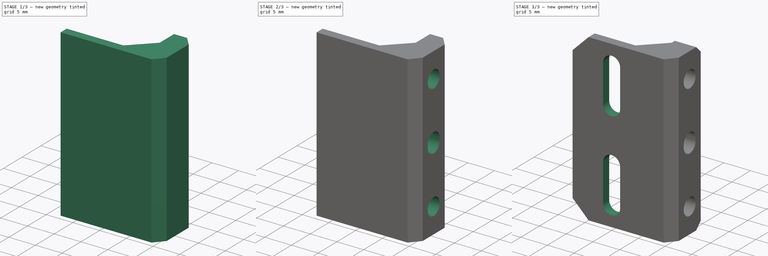
[diagram: build sequence overview — one tinted view per stage of 3, left to right]
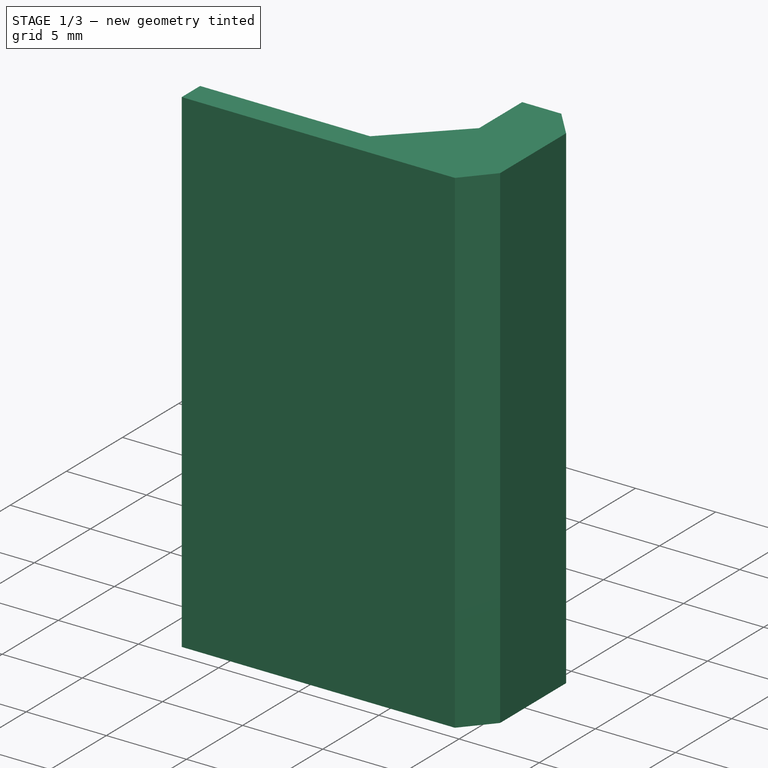
[diagram: stage 1 of 3 — iso view after this stage's code; geometry added in this stage tinted green]
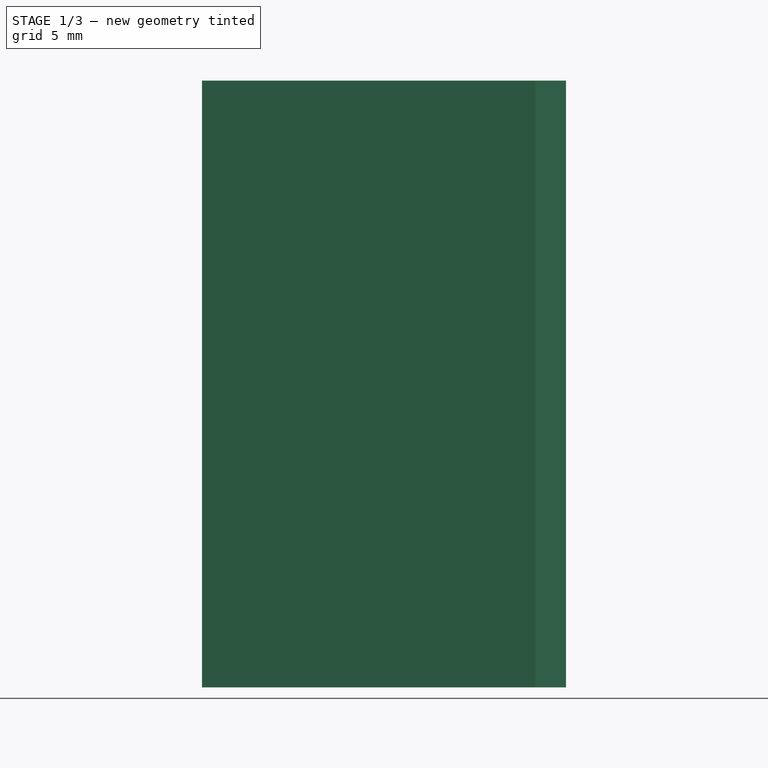
[diagram: stage 1 of 3 — front view after this stage's code; geometry added in this stage tinted green]
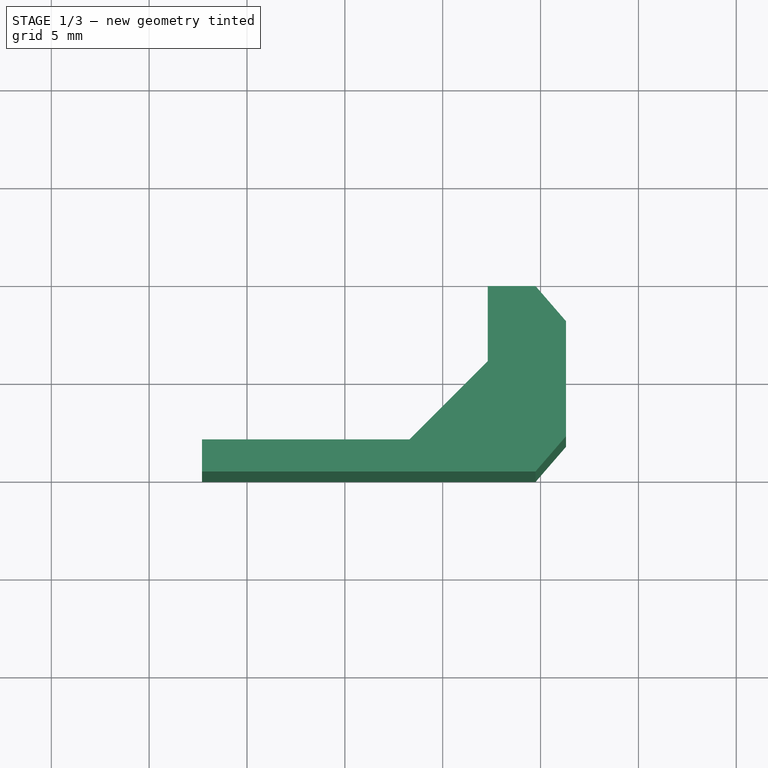
[diagram: stage 1 of 3 — top view after this stage's code; geometry added in this stage tinted green]
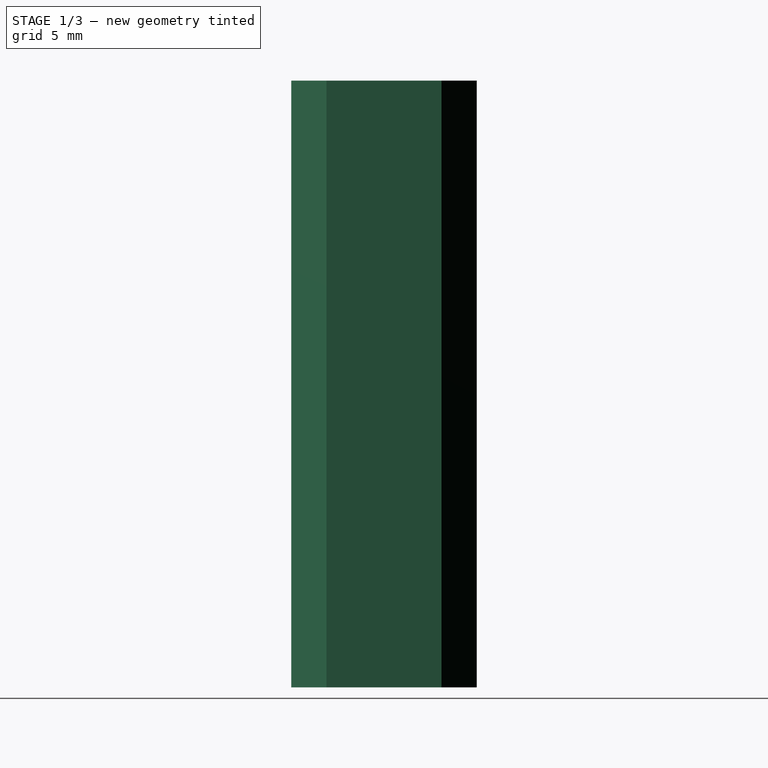
[diagram: stage 1 of 3 — right view after this stage's code; geometry added in this stage tinted green]
FCSTD DOCUMENT  (FreeCAD 0.20R29177 (Git))
Label: sporte-encoder
License: All rights reserved
LicenseURL: http://en.wikipedia.org/wiki/All_rights_reserved
objects: Sketcher::SketchObject×4, PartDesign::Pocket×3, PartDesign::Chamfer×2, PartDesign::Pad×1, PartDesign::Body×1
note: 17 computed .brp shape members not serialized (recipe doc carries the construction recipe); baked Part::Feature solids carry a one-line shape summary decoded from their .brp

FEATURE [Sketcher::SketchObject] Sketch
  FullyConstrained = true
  MapMode = 5
  Support = -> [XY_Plane]
  sketch-geometry (13):
    g0: LineSegment StartX=-7.3 StartY=1.64 StartZ=0 EndX=-7.3 EndY=0 EndZ=0
    g1: LineSegment StartX=-7.3 StartY=0 StartZ=0 EndX=9.74 EndY=0 EndZ=0
    g2: LineSegment StartX=9.74 StartY=0 StartZ=0 EndX=11.3 EndY=1.8 EndZ=0
    g3: LineSegment StartX=11.3 StartY=1.8 StartZ=0 EndX=11.3 EndY=7.68 EndZ=0
    g4: LineSegment StartX=11.3 StartY=7.68 StartZ=0 EndX=9.74 EndY=9.48 EndZ=0
    g5: LineSegment StartX=9.74 StartY=9.48 StartZ=0 EndX=7.3 EndY=9.48 EndZ=0
    g6: LineSegment StartX=7.3 StartY=9.48 StartZ=0 EndX=7.3 EndY=1.64 EndZ=0
    g7: LineSegment StartX=7.3 StartY=1.64 StartZ=0 EndX=-7.3 EndY=1.64 EndZ=0
    g8: LineSegment StartX=9.74 StartY=9.48 StartZ=0 EndX=9.74 EndY=0 EndZ=0
    g9: LineSegment StartX=11.3 StartY=7.68 StartZ=0 EndX=11.3 EndY=4.74 EndZ=0
    g10: LineSegment StartX=11.3 StartY=1.8 StartZ=0 EndX=11.3 EndY=4.74 EndZ=0
    g11: LineSegment StartX=-7.3 StartY=0 StartZ=0 EndX=0 EndY=0 EndZ=0
    g12: LineSegment StartX=0 StartY=0 StartZ=0 EndX=7.3 EndY=0 EndZ=0
  constraints (36):
    c: Coincident(g0,g1)
    c: Horizontal(g1)
    c: Coincident(g1,g2)
    c: Coincident(g2,g3)
    c: Coincident(g3,g4)
    c: Coincident(g4,g5)
    c: Coincident(g5,g6)
    c: Vertical(g6)
    c: Coincident(g6,g7)
    c: Coincident(g7,g0)
    c: Horizontal(g7)
    c: Vertical(g0)
    c: Vertical(g3)
    c: Equal(g2,g4)
    c: Horizontal(g5)
    c: Coincident(g8,g4)
    c: Coincident(g8,g1)
    c: Vertical(g8)
    c: DistanceX(g4,g3) = 1.56
    c: DistanceY(g8,g8) = 9.48
    c: DistanceY(g3,g3) = 5.88
    c: DistanceX(g5,g3) = 4
    c: Coincident(g9,g3)
    c: Coincident(g10,g2)
    c: Coincident(g10,g9)
    c: Equal(g9,g10)
    c: PointOnObject(g9,g3)
    c: DistanceY(g0,g0) = 1.64
    c: DistanceX(g0,g5) = 14.6
    c: Coincident(g11,g0)
    c: Coincident(g12,g11)
    c: PointOnObject(g12,g1)
    c: Vertical(g12,g6)
    c: Equal(g12,g11)
    c: Coincident(g11,g-1)
    c: PointOnObject(g11,g1)
FEATURE [PartDesign::Pad] Pad
  Direction = (0,0,1)
  Length = 31
  Length2 = 10
  Profile = -> Sketch
  ReferenceAxis = -> Sketch [N_Axis]
  Type = 0
FEATURE [PartDesign::Chamfer] Chamfer
  Angle = 45
  Base = -> Pad [Edge20]
  BaseFeature = -> Pad
  ChamferType = 0
  FlipDirection = false
  Size = 4
  Size2 = 1
  SupportTransform = false
  UseAllEdges = false
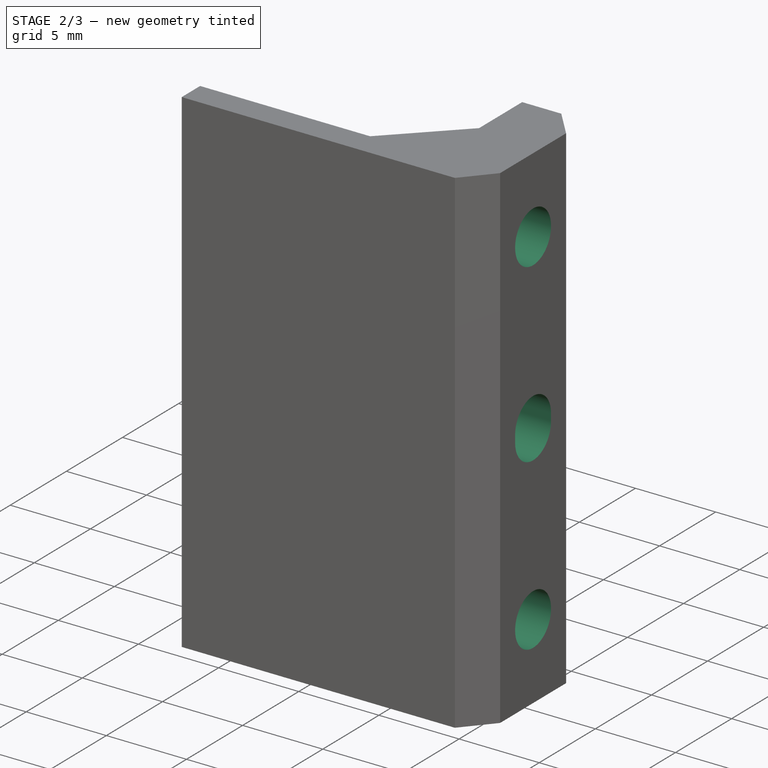
[diagram: stage 2 of 3 — iso view after this stage's code; geometry added in this stage tinted green]
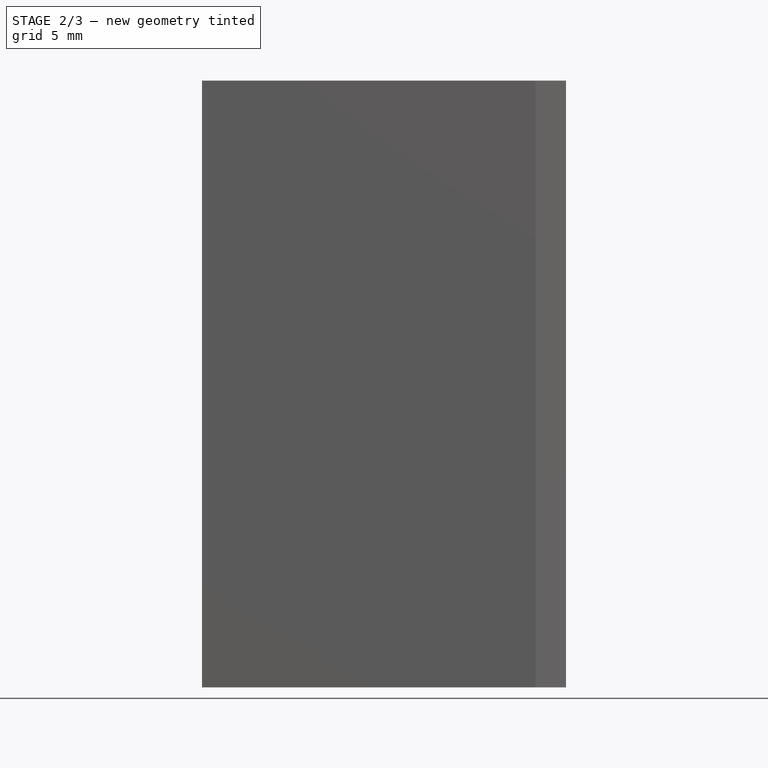
[diagram: stage 2 of 3 — front view after this stage's code; geometry added in this stage tinted green]
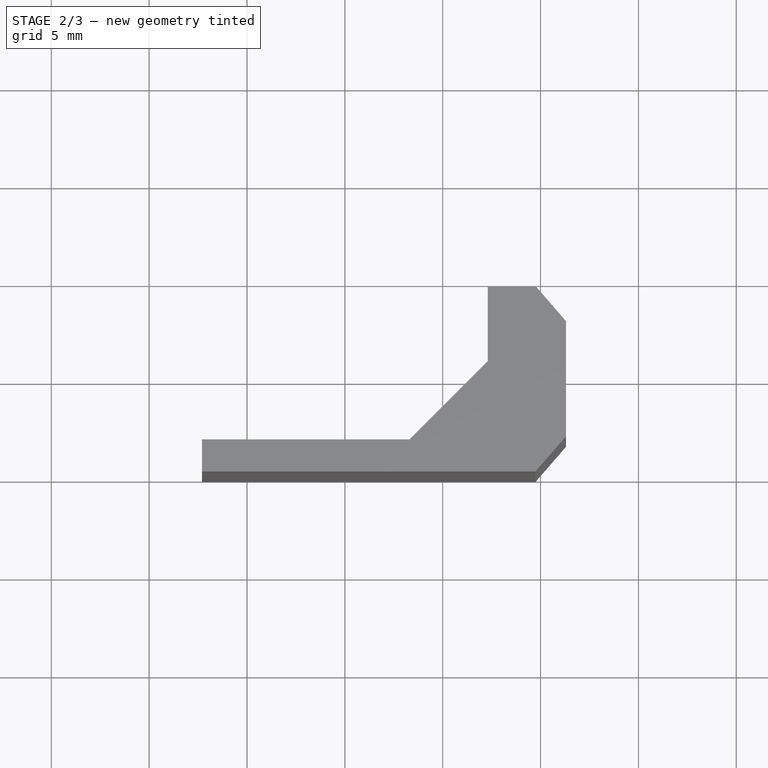
[diagram: stage 2 of 3 — top view after this stage's code; geometry added in this stage tinted green]
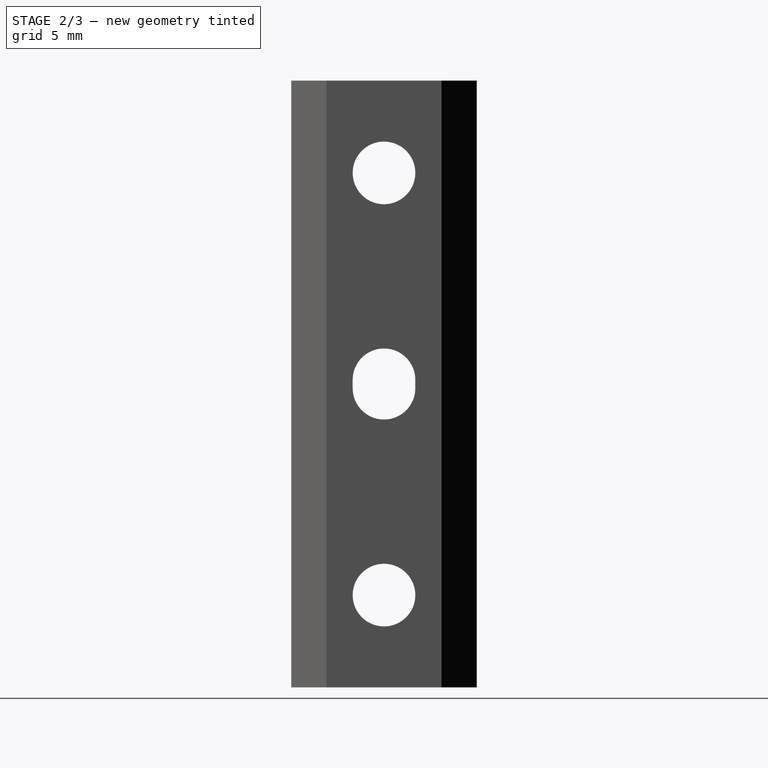
[diagram: stage 2 of 3 — right view after this stage's code; geometry added in this stage tinted green]
FEATURE [Sketcher::SketchObject] Sketch001
  ExternalGeometry = -> [Chamfer]
  FullyConstrained = true
  MapMode = 5
  Placement = pos=(11.3,0,0) rot=(0.57735,0.57735,0.57735;2.0944rad)
  Support = -> [Chamfer]
  sketch-geometry (20):
    g0: LineSegment StartX=1.8 StartY=31 StartZ=0 EndX=1.8 EndY=11 EndZ=0
    g1: LineSegment StartX=7.68 StartY=0 StartZ=0 EndX=7.68 EndY=20 EndZ=0
    g2: Circle CenterX=4.74 CenterY=26.286 CenterZ=0 NormalX=0 NormalY=0 NormalZ=1 AngleXU=0 Radius=1.6
    g3: Circle CenterX=4.74 CenterY=15.714 CenterZ=0 NormalX=0 NormalY=0 NormalZ=1 AngleXU=0 Radius=1.6
    g4: Circle CenterX=4.74 CenterY=15.286 CenterZ=0 NormalX=0 NormalY=0 NormalZ=1 AngleXU=0 Radius=1.6
    g5: Circle CenterX=4.74 CenterY=4.714 CenterZ=0 NormalX=0 NormalY=0 NormalZ=1 AngleXU=0 Radius=1.6
    g6: LineSegment StartX=7.68 StartY=20 StartZ=0 EndX=7.68 EndY=10 EndZ=0
    g7: LineSegment StartX=7.68 StartY=0 StartZ=0 EndX=7.68 EndY=10 EndZ=0
    g8: LineSegment StartX=1.8 StartY=11 StartZ=0 EndX=1.8 EndY=21 EndZ=0
    g9: LineSegment StartX=1.8 StartY=31 StartZ=0 EndX=1.8 EndY=21 EndZ=0
    g10: LineSegment StartX=4.74 StartY=15.286 StartZ=0 EndX=4.74 EndY=10 EndZ=0
    g11: LineSegment StartX=4.74 StartY=10 StartZ=0 EndX=4.74 EndY=4.714 EndZ=0
    g12: LineSegment StartX=4.74 StartY=26.286 StartZ=0 EndX=4.74 EndY=21 EndZ=0
    g13: LineSegment StartX=4.74 StartY=15.714 StartZ=0 EndX=4.74 EndY=21 EndZ=0
    g14: LineSegment StartX=1.8 StartY=0 StartZ=0 EndX=4.74 EndY=0 EndZ=0
    g15: LineSegment StartX=7.68 StartY=0 StartZ=0 EndX=4.74 EndY=0 EndZ=0
    g16: ArcOfCircle CenterX=4.74 CenterY=15.714 CenterZ=0 NormalX=0 NormalY=0 NormalZ=1 AngleXU=0 Radius=1.6 StartAngle=3e-15 EndAngle=3.14159
    g17: ArcOfCircle CenterX=4.74 CenterY=15.286 CenterZ=0 NormalX=0 NormalY=0 NormalZ=1 AngleXU=0 Radius=1.6 StartAngle=3.14159 EndAngle=6.28319
    g18: LineSegment StartX=3.14 StartY=15.714 StartZ=0 EndX=3.14 EndY=15.286 EndZ=0
    g19: LineSegment StartX=6.34 StartY=15.286 StartZ=0 EndX=6.34 EndY=15.714 EndZ=0
  constraints (51):
    c: Coincident(g0,g-3)
    c: Coincident(g1,g-4)
    c: Equal(g1,g0)
    c: Vertical(g0)
    c: Vertical(g1)
    c: DistanceY(g1,g1) = 20
    c: Vertical(g5,g4)
    c: Vertical(g4,g3)
    c: Vertical(g3,g2)
    c: Coincident(g6,g1)
    c: Coincident(g7,g1)
    c: Coincident(g7,g6)
    c: Coincident(g8,g0)
    c: Coincident(g9,g0)
    c: Coincident(g9,g8)
    c: Equal(g7,g6)
    c: Equal(g6,g8)
    c: Equal(g8,g9)
    c: PointOnObject(g8,g0)
    c: Radius(g2) = 1.6
    c: Equal(g3,g2)
    c: Equal(g2,g4)
    c: Equal(g4,g5)
    c: Coincident(g10,g4)
    c: Coincident(g11,g10)
    c: Coincident(g11,g5)
    c: Equal(g11,g10)
    c: Vertical(g11)
    c: Horizontal(g10,g6)
    c: Coincident(g12,g2)
    c: Coincident(g13,g3)
    c: Coincident(g13,g12)
    c: Horizontal(g12,g8)
    c: Equal(g13,g12)
    c: Vertical(g13)
    c: Equal(g13,g10)
    c: DistanceY(g5,g4) = 10.572
    c: Coincident(g14,g-3)
    c: Coincident(g15,g1)
    c: Coincident(g15,g14)
    c: Equal(g15,g14)
    c: Vertical(g14,g5)
    c: Horizontal(g15)
    c: Tangent(g16,g18) = -1.5708
    c: Tangent(g18,g17) = -1.5708
    c: Tangent(g17,g19) = -1.5708
    c: Tangent(g19,g16) = -1.5708
    c: Equal(g16,g17)
    c: Coincident(g16,g3)
    c: Coincident(g17,g4)
    c: Equal(g16,g3)
FEATURE [PartDesign::Pocket] Pocket
  BaseFeature = -> Chamfer
  Direction = (-1,0,0)
  Length = 0
  Length2 = 5
  Profile = -> Sketch001
  ReferenceAxis = -> Sketch001 [N_Axis]
  Type = 3
  UpToFace = -> Chamfer [Face8]
FEATURE [Sketcher::SketchObject] Sketch002
  ExternalGeometry = -> [Pocket]
  FullyConstrained = true
  MapMode = 5
  Placement = pos=(7.3,0,0) rot=(0.57735,-0.57735,-0.57735;2.0944rad)
  Support = -> [Pocket]
  sketch-geometry (6):
    g0: Circle CenterX=-4.74 CenterY=26.286 CenterZ=0 NormalX=0 NormalY=0 NormalZ=1 AngleXU=0 Radius=3.1
    g1: Circle CenterX=-4.74 CenterY=4.714 CenterZ=0 NormalX=0 NormalY=0 NormalZ=1 AngleXU=0 Radius=3.1
    g2: ArcOfCircle CenterX=-4.74 CenterY=15.714 CenterZ=0 NormalX=0 NormalY=0 NormalZ=1 AngleXU=0 Radius=3.1 StartAngle=1e-16 EndAngle=3.14159
    g3: ArcOfCircle CenterX=-4.74 CenterY=15.286 CenterZ=0 NormalX=0 NormalY=0 NormalZ=1 AngleXU=0 Radius=3.1 StartAngle=3.14159 EndAngle=6.28319
    g4: LineSegment StartX=-7.84 StartY=15.714 StartZ=0 EndX=-7.84 EndY=15.286 EndZ=0
    g5: LineSegment StartX=-1.64 StartY=15.286 StartZ=0 EndX=-1.64 EndY=15.714 EndZ=0
  constraints (12):
    c: Tangent(g2,g4) = -1.5708
    c: Tangent(g4,g3) = -1.5708
    c: Tangent(g3,g5) = -1.5708
    c: Tangent(g5,g2) = -1.5708
    c: Equal(g2,g3)
    c: Coincident(g3,g-6)
    c: Coincident(g2,g-5)
    c: Coincident(g0,g-4)
    c: Coincident(g1,g-3)
    c: Equal(g1,g2)
    c: Equal(g2,g0)
    c: Radius(g0) = 3.1
FEATURE [PartDesign::Pocket] Pocket001
  BaseFeature = -> Pocket
  Direction = (1,0,0)
  Length = 0
  Length2 = 5
  Profile = -> Sketch002
  ReferenceAxis = -> Sketch002 [N_Axis]
  Reversed = true
  Type = 3
  UpToFace = -> Pocket [Face15]
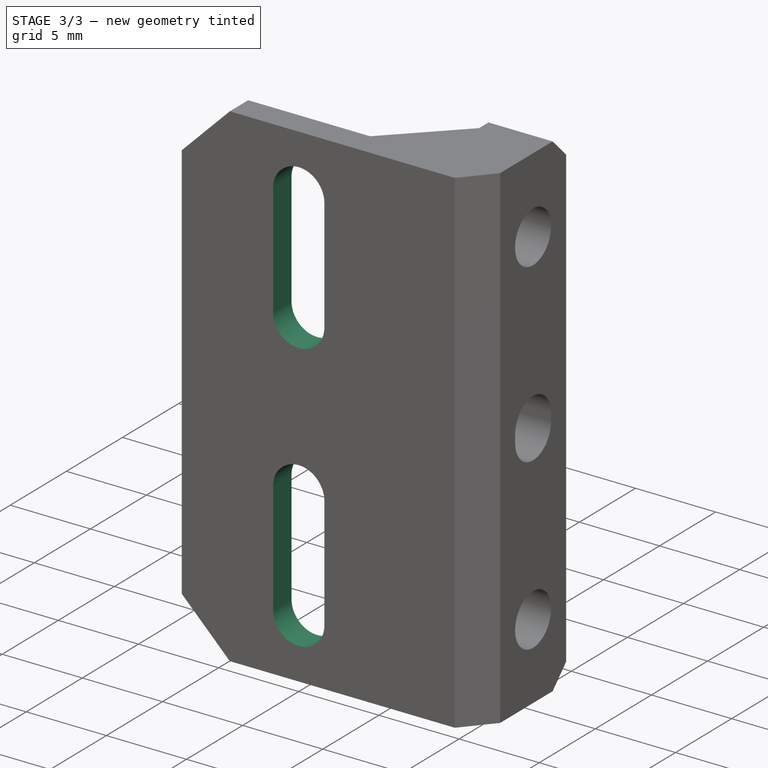
[diagram: stage 3 of 3 — iso view after this stage's code; geometry added in this stage tinted green]
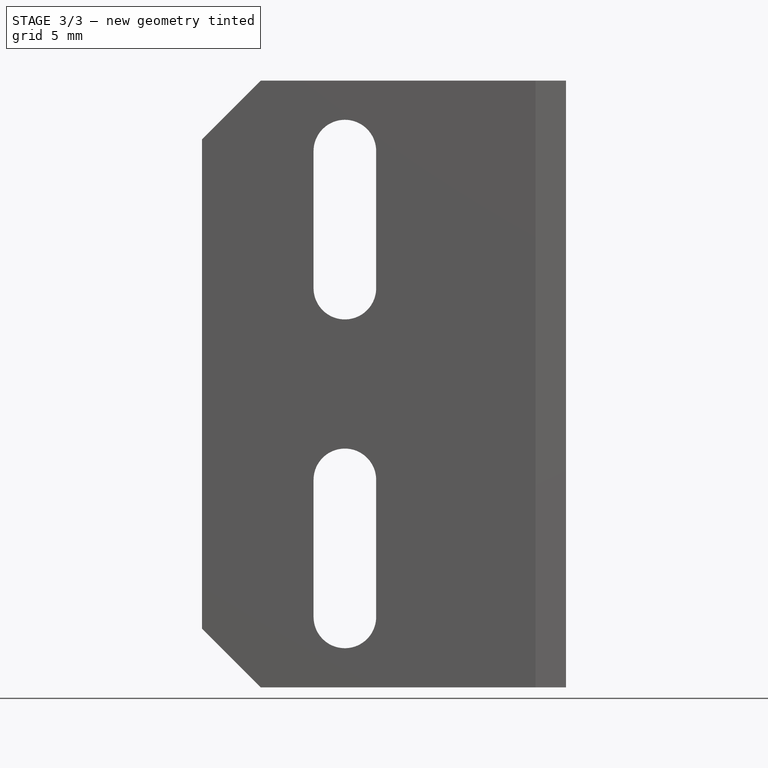
[diagram: stage 3 of 3 — front view after this stage's code; geometry added in this stage tinted green]
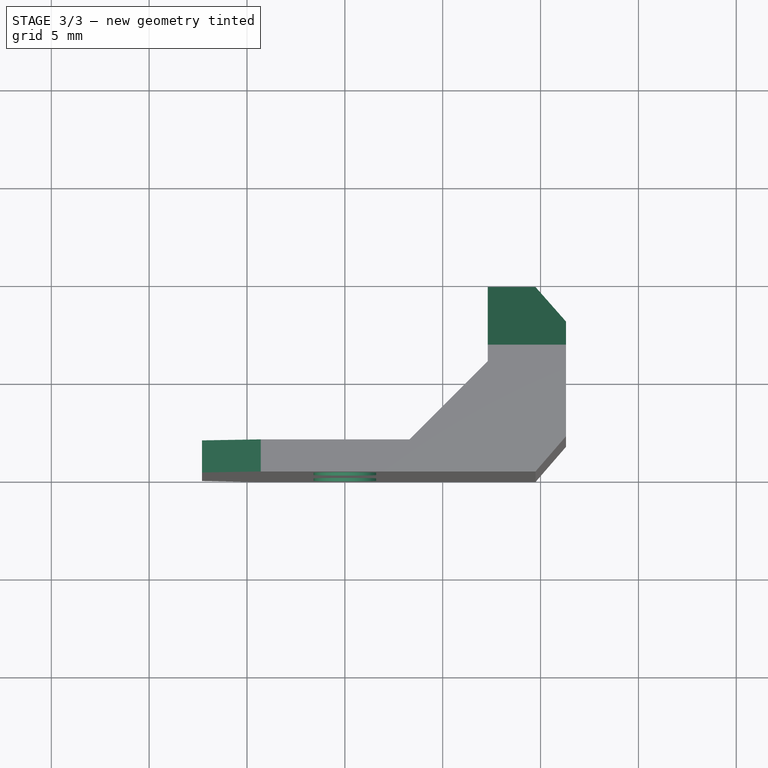
[diagram: stage 3 of 3 — top view after this stage's code; geometry added in this stage tinted green]
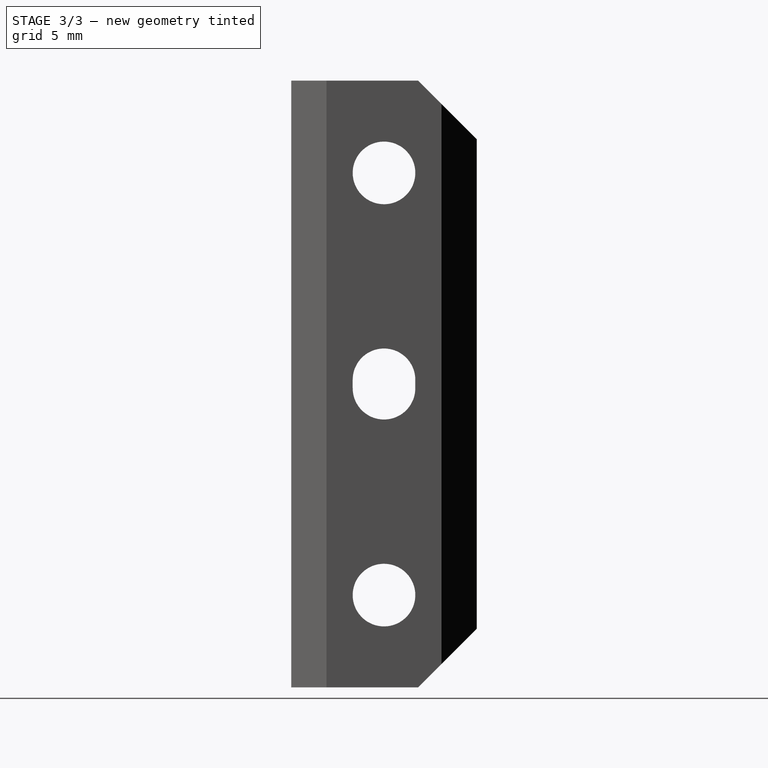
[diagram: stage 3 of 3 — right view after this stage's code; geometry added in this stage tinted green]
FEATURE [Sketcher::SketchObject] Sketch003
  ExternalGeometry = -> [Pocket001]
  FullyConstrained = true
  MapMode = 5
  Placement = pos=(0,0,0) rot=(1,0,0;1.5708rad)
  Support = -> [Pocket001]
  sketch-geometry (14):
    g0: LineSegment StartX=-7.3 StartY=31 StartZ=0 EndX=7.3 EndY=31 EndZ=0
    g1: LineSegment StartX=7.3 StartY=31 StartZ=0 EndX=7.3 EndY=0 EndZ=0
    g2: LineSegment StartX=7.3 StartY=0 StartZ=0 EndX=-7.3 EndY=0 EndZ=0
    g3: LineSegment StartX=-7.3 StartY=0 StartZ=0 EndX=-7.3 EndY=31 EndZ=0
    g4: ArcOfCircle CenterX=0 CenterY=27.4 CenterZ=0 NormalX=0 NormalY=0 NormalZ=1 AngleXU=0 Radius=1.6 StartAngle=0 EndAngle=3.14159
    g5: ArcOfCircle CenterX=0 CenterY=20.4 CenterZ=0 NormalX=0 NormalY=0 NormalZ=1 AngleXU=0 Radius=1.6 StartAngle=3.14159 EndAngle=6.28319
    g6: LineSegment StartX=-1.6 StartY=27.4 StartZ=0 EndX=-1.6 EndY=20.4 EndZ=0
    g7: LineSegment StartX=1.6 StartY=20.4 StartZ=0 EndX=1.6 EndY=27.4 EndZ=0
    g8: ArcOfCircle CenterX=0 CenterY=10.6 CenterZ=0 NormalX=0 NormalY=0 NormalZ=1 AngleXU=0 Radius=1.6 StartAngle=4e-16 EndAngle=3.14159
    g9: ArcOfCircle CenterX=0 CenterY=3.6 CenterZ=0 NormalX=0 NormalY=0 NormalZ=1 AngleXU=0 Radius=1.6 StartAngle=3.14159 EndAngle=6.28319
    g10: LineSegment StartX=-1.6 StartY=10.6 StartZ=0 EndX=-1.6 EndY=3.6 EndZ=0
    g11: LineSegment StartX=1.6 StartY=3.6 StartZ=0 EndX=1.6 EndY=10.6 EndZ=0
    g12: GeomPoint X=0 Y=2 Z=0
    g13: GeomPoint X=0 Y=29 Z=0
  constraints (35):
    c: Coincident(g0,g1)
    c: Coincident(g1,g2)
    c: Coincident(g2,g3)
    c: Coincident(g3,g0)
    c: Horizontal(g0)
    c: Horizontal(g2)
    c: Vertical(g1)
    c: Vertical(g3)
    c: Coincident(g0,g-3)
    c: Horizontal(g2,g-3)
    c: DistanceX(g2,g2) = 14.6
    c: Tangent(g4,g6) = -1.5708
    c: Tangent(g6,g5) = -1.5708
    c: Tangent(g5,g7) = -1.5708
    c: Tangent(g7,g4) = -1.5708
    c: Equal(g4,g5)
    c: PointOnObject(g4,g-2)
    c: PointOnObject(g5,g-2)
    c: Tangent(g8,g10) = -1.5708
    c: Tangent(g10,g9) = -1.5708
    c: Tangent(g9,g11) = -1.5708
    c: Tangent(g11,g8) = -1.5708
    c: Equal(g8,g9)
    c: PointOnObject(g8,g-2)
    c: PointOnObject(g9,g-2)
    c: Equal(g8,g5)
    c: Equal(g10,g6)
    c: PointOnObject(g12,g-2)
    c: PointOnObject(g13,g4)
    c: PointOnObject(g13,g-2)
    c: PointOnObject(g12,g9)
    c: DistanceY(g-1,g12) = 2
    c: DistanceY(g13,g0) = 2
    c: Radius(g5) = 1.6
    c: DistanceY(g10,g10) = 7
FEATURE [PartDesign::Pocket] Pocket002
  BaseFeature = -> Pocket001
  Direction = (0,1,-2e-16)
  Length = 0
  Length2 = 5
  Profile = -> Sketch003
  ReferenceAxis = -> Sketch003 [N_Axis]
  Type = 3
  UpToFace = -> Pocket001 [Face10]
FEATURE [PartDesign::Chamfer] Chamfer001
  Angle = 45
  Base = -> Pocket002 [Edge38,Edge46,Edge49,Edge41]
  BaseFeature = -> Pocket002
  ChamferType = 0
  FlipDirection = false
  Size = 3
  Size2 = 1
  SupportTransform = false
  UseAllEdges = false
FEATURE [PartDesign::Body] Body
  Group = -> [Sketch,Pad,Chamfer,Sketch001,Pocket,Sketch002,Pocket001,Sketch003,Pocket002,Chamfer001]
  Origin = -> Origin
  Tip = -> Chamfer001
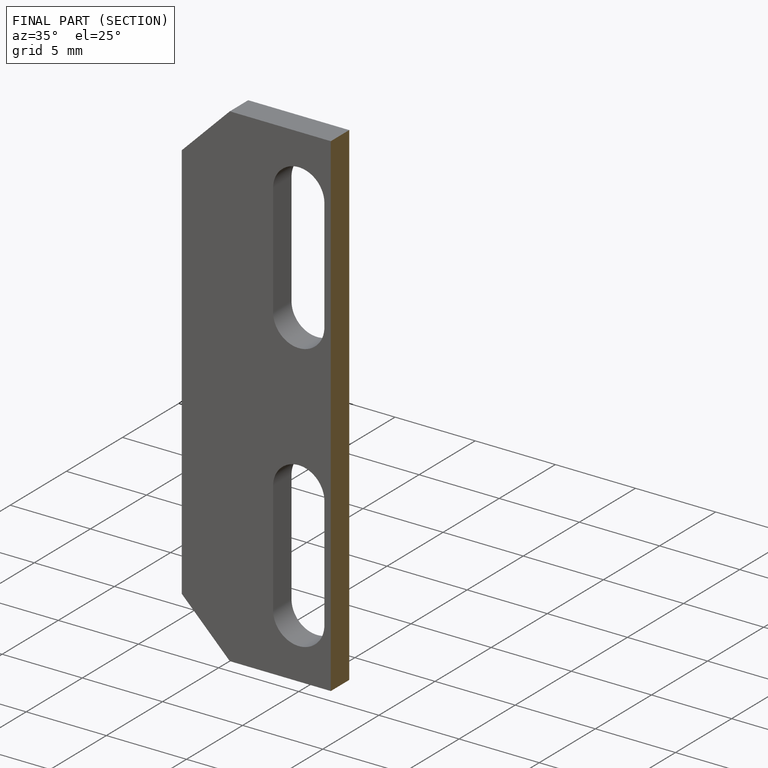
[diagram: finished part — half-section view (interior)]
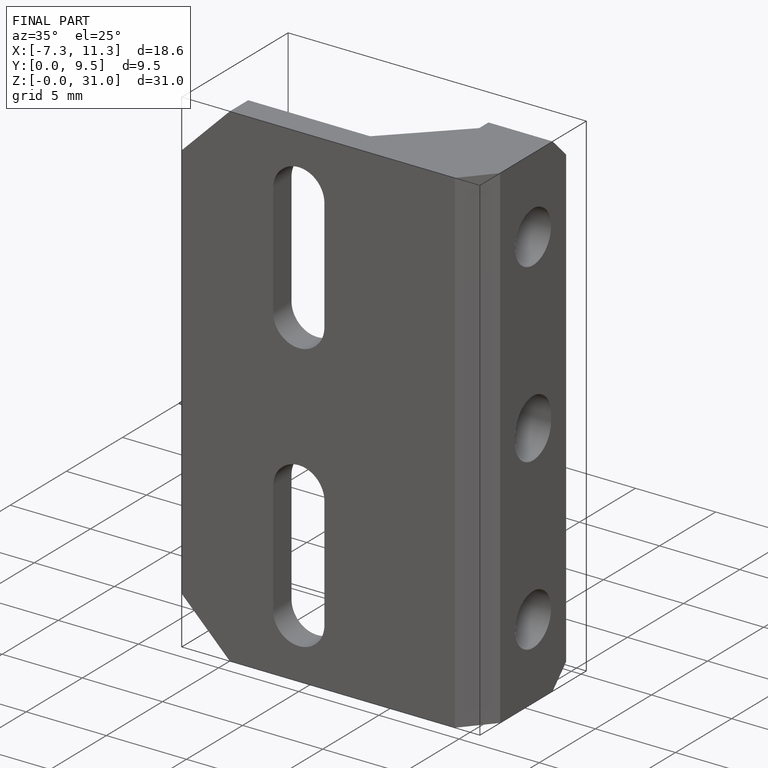
[diagram: finished part — iso view with bounding-box wireframe]
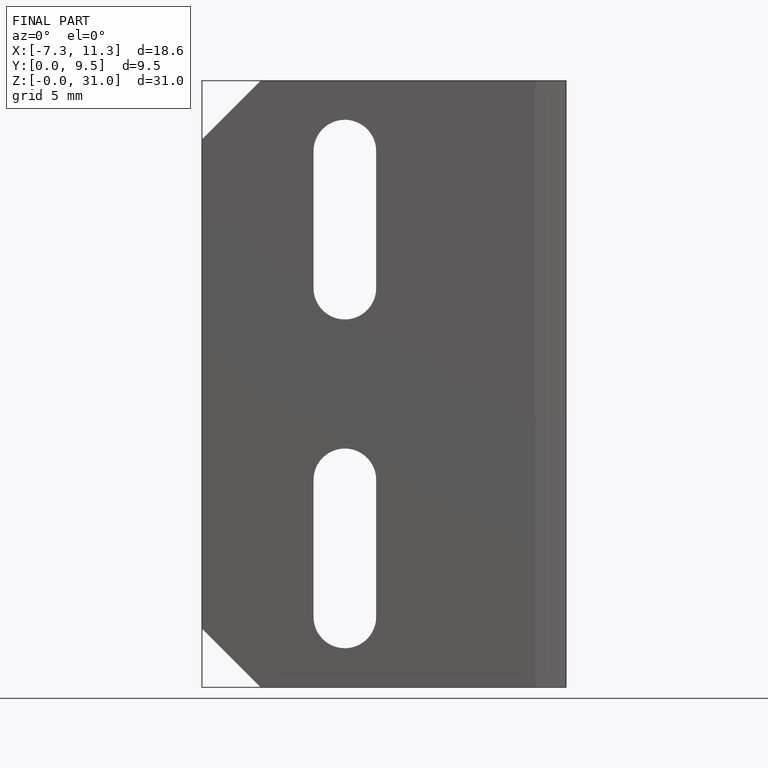
[diagram: finished part — front view with bounding-box wireframe]
